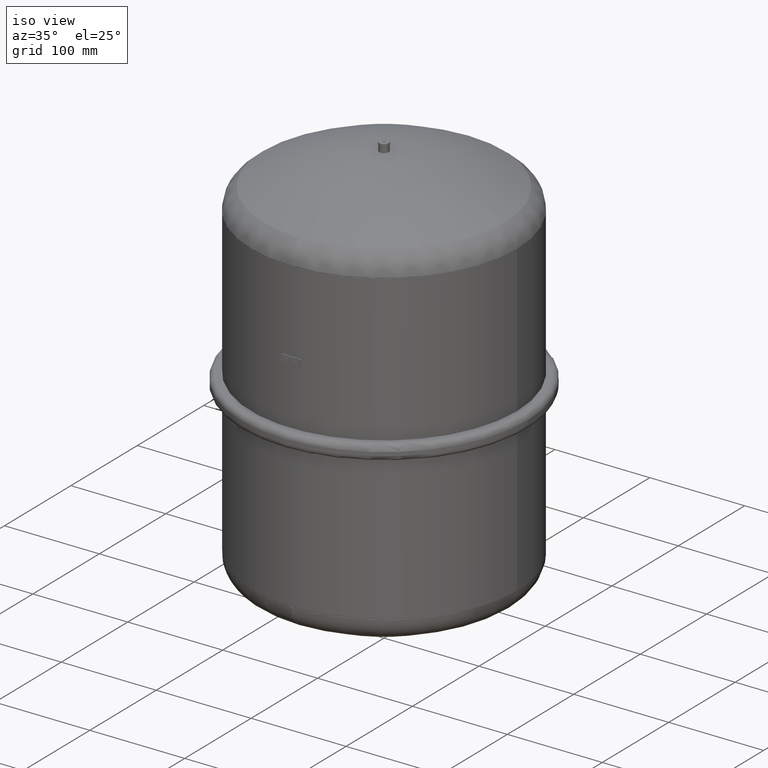
[diagram: clean part render]
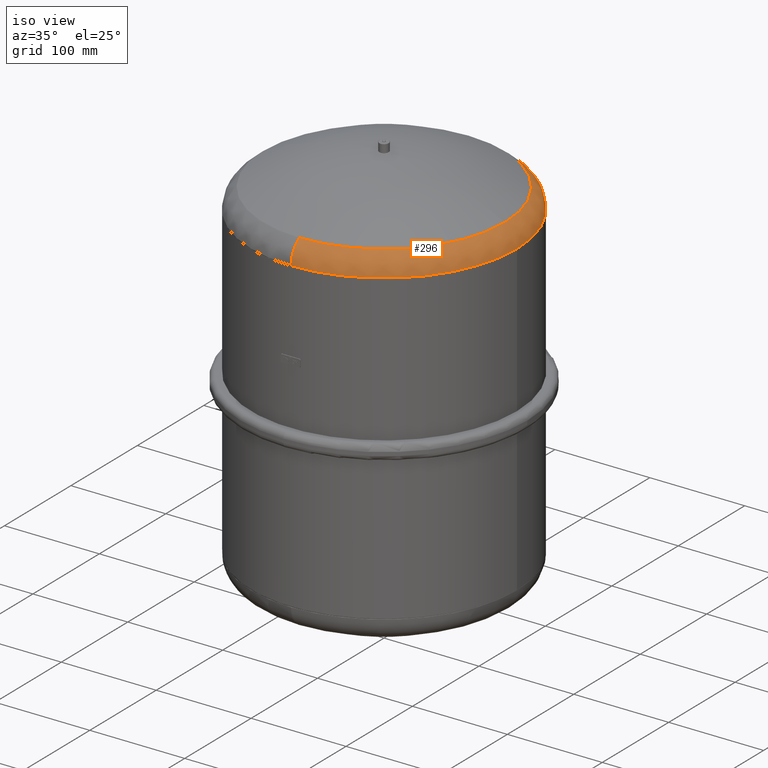
[diagram: same view with one face highlighted and labeled with its STEP entity id]
A machine part, iso view. The second image highlights one B-rep face of the part: STEP entity #296.
In plain terms, the highlighted face is a freeform B-spline surface patch.
Its self-contained STEP definition (entity closure, byte-faithful):
#170=CARTESIAN_POINT('',(140.0,1.726252E-014,398.64254242384544));
#171=VERTEX_POINT('',#170);
#178=CARTESIAN_POINT('',(7.385169E-015,-140.0,398.64254242384544));
#179=VERTEX_POINT('',#178);
#180=CARTESIAN_POINT('',(-1.190815E-016,1.180331E-016,398.64254242384544));
#181=DIRECTION('',(0.0,0.0,1.0));
#182=DIRECTION('',(-1.0,0.0,0.0));
#183=AXIS2_PLACEMENT_3D('',#180,#181,#182);
#184=CIRCLE('',#183,140.0);
#185=EDGE_CURVE('',#179,#171,#184,.T.);
#197=CARTESIAN_POINT('',(-3.636288E-015,90.000000000000028,398.64254242384538));
#198=CARTESIAN_POINT('',(-8.269503E-015,89.999999999999972,423.64254242384538));
#199=CARTESIAN_POINT('',(-1.133102E-014,115.00000000000001,423.64254242384544));
#200=CARTESIAN_POINT('',(-1.439253E-014,140.00000000000006,423.64254242384544));
#201=CARTESIAN_POINT('',(-9.759320E-015,140.0,398.64254242384538));
#202=CARTESIAN_POINT('',(-90.000000000000014,90.0,398.64254242384538));
#203=CARTESIAN_POINT('',(-89.999999999999972,89.999999999999957,423.64254242384544));
#204=CARTESIAN_POINT('',(-115.0,114.99999999999997,423.64254242384544));
#205=CARTESIAN_POINT('',(-140.00000000000006,140.00000000000003,423.64254242384544));
#206=CARTESIAN_POINT('',(-140.0,139.99999999999994,398.64254242384538));
#207=CARTESIAN_POINT('',(-90.000000000000014,-1.090342E-014,398.64254242384538));
#208=CARTESIAN_POINT('',(-89.999999999999972,-6.310999E-015,423.64254242384538));
#209=CARTESIAN_POINT('',(-115.00000000000001,-9.372514E-015,423.64254242384544));
#210=CARTESIAN_POINT('',(-140.00000000000006,-1.243403E-014,423.64254242384544));
#211=CARTESIAN_POINT('',(-140.0,-1.702646E-014,398.64254242384538));
#212=CARTESIAN_POINT('',(-89.999999999999986,-90.000000000000028,398.64254242384538));
#213=CARTESIAN_POINT('',(-89.999999999999943,-89.999999999999957,423.64254242384544));
#214=CARTESIAN_POINT('',(-114.99999999999997,-115.0,423.64254242384544));
#215=CARTESIAN_POINT('',(-140.0,-140.00000000000003,423.64254242384544));
#216=CARTESIAN_POINT('',(-139.99999999999994,-140.0,398.64254242384538));
#217=CARTESIAN_POINT('',(1.840663E-014,-90.000000000000028,398.64254242384538));
#218=CARTESIAN_POINT('',(1.377341E-014,-89.999999999999972,423.64254242384538));
#219=CARTESIAN_POINT('',(1.683493E-014,-115.00000000000001,423.64254242384544));
#220=CARTESIAN_POINT('',(1.989644E-014,-140.00000000000006,423.64254242384544));
#221=CARTESIAN_POINT('',(2.452966E-014,-140.0,398.64254242384538));
#222=CARTESIAN_POINT('',(90.000000000000043,-90.0,398.64254242384538));
#223=CARTESIAN_POINT('',(89.999999999999972,-89.999999999999943,423.64254242384544));
#224=CARTESIAN_POINT('',(115.0,-114.99999999999997,423.64254242384544));
#225=CARTESIAN_POINT('',(140.00000000000006,-140.0,423.64254242384544));
#226=CARTESIAN_POINT('',(140.0,-139.99999999999994,398.64254242384538));
#227=CARTESIAN_POINT('',(90.000000000000043,1.113949E-014,398.64254242384538));
#228=CARTESIAN_POINT('',(89.999999999999972,1.573192E-014,423.64254242384538));
#229=CARTESIAN_POINT('',(115.00000000000001,1.879343E-014,423.64254242384544));
#230=CARTESIAN_POINT('',(140.00000000000006,2.185495E-014,423.64254242384544));
#231=CARTESIAN_POINT('',(140.0,1.726252E-014,398.64254242384538));
#232=CARTESIAN_POINT('',(90.000000000000014,90.000000000000028,398.64254242384538));
#233=CARTESIAN_POINT('',(89.999999999999943,89.999999999999972,423.64254242384544));
#234=CARTESIAN_POINT('',(114.99999999999997,115.0,423.64254242384544));
#235=CARTESIAN_POINT('',(140.0,140.00000000000006,423.64254242384544));
#236=CARTESIAN_POINT('',(139.99999999999994,140.0,398.64254242384538));
#237=CARTESIAN_POINT('',(-3.636288E-015,90.000000000000028,398.64254242384538));
#238=CARTESIAN_POINT('',(-8.269503E-015,89.999999999999972,423.64254242384538));
#239=CARTESIAN_POINT('',(-1.133102E-014,115.00000000000001,423.64254242384544));
#240=CARTESIAN_POINT('',(-1.439253E-014,140.00000000000006,423.64254242384544));
#241=CARTESIAN_POINT('',(-9.759320E-015,140.0,398.64254242384538));
#249=(BOUNDED_SURFACE()B_SPLINE_SURFACE(2,2,((#197,#202,#207,#212,#217,#222,#227,#232,#237),(#198,#203,#208,#213,#218,#223,#228,#233,#238),(#199,#204,#209,#214,#219,#224,#229,#234,#239),(#200,#205,#210,#215,#220,#225,#230,#235,#240),(#201,#206,#211,#216,#221,#226,#231,#236,#241)),.UNSPECIFIED.,.F.,.T.,.U.)B_SPLINE_SURFACE_WITH_KNOTS((3,2,3),(3,2,2,2,3),(-3.141592653589795,-1.570796326794897,2.066543E-015),(0.0,1.570796326794897,3.141592653589793,4.71238898038469,6.283185307179586),.UNSPECIFIED.)GEOMETRIC_REPRESENTATION_ITEM()RATIONAL_B_SPLINE_SURFACE(((1.0,0.707106781186548,1.0,0.707106781186548,1.0,0.707106781186548,1.0,0.707106781186548,1.0),(0.707106781186545,0.499999999999998,0.707106781186545,0.499999999999998,0.707106781186545,0.499999999999998,0.707106781186545,0.499999999999998,0.707106781186545),(1.0,0.707106781186548,1.0,0.707106781186548,1.0,0.707106781186548,1.0,0.707106781186548,1.0),(0.707106781186546,0.499999999999999,0.707106781186546,0.499999999999999,0.707106781186546,0.499999999999999,0.707106781186546,0.499999999999999,0.707106781186546),(1.0,0.707106781186548,1.0,0.707106781186548,1.0,0.707106781186548,1.0,0.707106781186548,1.0)))REPRESENTATION_ITEM('')SURFACE());
#250=CARTESIAN_POINT('',(3.355614E-015,-127.33905579399143,420.38530448648982));
#251=VERTEX_POINT('',#250);
#252=CARTESIAN_POINT('',(7.385169E-015,-115.00000000000001,398.64254242384544));
#253=DIRECTION('',(-1.0,0.0,0.0));
#254=DIRECTION('',(0.0,-1.0,0.0));
#255=AXIS2_PLACEMENT_3D('',#252,#253,#254);
#256=CIRCLE('',#255,25.0);
#257=EDGE_CURVE('',#179,#251,#256,.T.);
#258=ORIENTED_EDGE('',*,*,#257,.F.);
#259=ORIENTED_EDGE('',*,*,#185,.T.);
#260=CARTESIAN_POINT('',(-9.759320E-015,140.0,398.64254242384544));
#261=VERTEX_POINT('',#260);
#262=CARTESIAN_POINT('',(-1.190815E-016,1.180331E-016,398.64254242384544));
#263=DIRECTION('',(0.0,0.0,1.0));
#264=DIRECTION('',(-1.0,0.0,0.0));
#265=AXIS2_PLACEMENT_3D('',#262,#263,#264);
#266=CIRCLE('',#265,140.0);
#267=EDGE_CURVE('',#171,#261,#266,.T.);
#268=ORIENTED_EDGE('',*,*,#267,.T.);
#269=CARTESIAN_POINT('',(-1.223841E-014,127.33905579399143,420.38530448648982));
#270=VERTEX_POINT('',#269);
#271=CARTESIAN_POINT('',(-6.697804E-015,115.00000000000001,398.64254242384544));
#272=DIRECTION('',(1.0,0.0,0.0));
#273=DIRECTION('',(0.0,1.0,0.0));
#274=AXIS2_PLACEMENT_3D('',#271,#272,#273);
#275=CIRCLE('',#274,25.0);
#276=EDGE_CURVE('',#261,#270,#275,.T.);
#277=ORIENTED_EDGE('',*,*,#276,.T.);
#278=CARTESIAN_POINT('',(127.33905579399143,-3.710680E-014,420.38530448648982));
#279=VERTEX_POINT('',#278);
#280=CARTESIAN_POINT('',(-4.148636E-015,4.112114E-015,420.38530448648982));
#281=DIRECTION('',(0.0,0.0,1.0));
#282=DIRECTION('',(-1.0,0.0,0.0));
#283=AXIS2_PLACEMENT_3D('',#280,#281,#282);
#284=CIRCLE('',#283,127.33905579399143);
#285=EDGE_CURVE('',#279,#270,#284,.T.);
#286=ORIENTED_EDGE('',*,*,#285,.F.);
#287=CARTESIAN_POINT('',(-4.148636E-015,4.112114E-015,420.38530448648982));
#288=DIRECTION('',(0.0,0.0,1.0));
#289=DIRECTION('',(-1.0,0.0,0.0));
#290=AXIS2_PLACEMENT_3D('',#287,#288,#289);
#291=CIRCLE('',#290,127.33905579399143);
#292=EDGE_CURVE('',#251,#279,#291,.T.);
#293=ORIENTED_EDGE('',*,*,#292,.F.);
#294=EDGE_LOOP('',(#258,#259,#268,#277,#286,#293));
#295=FACE_OUTER_BOUND('',#294,.T.);
#296=ADVANCED_FACE('',(#295),#249,.T.);